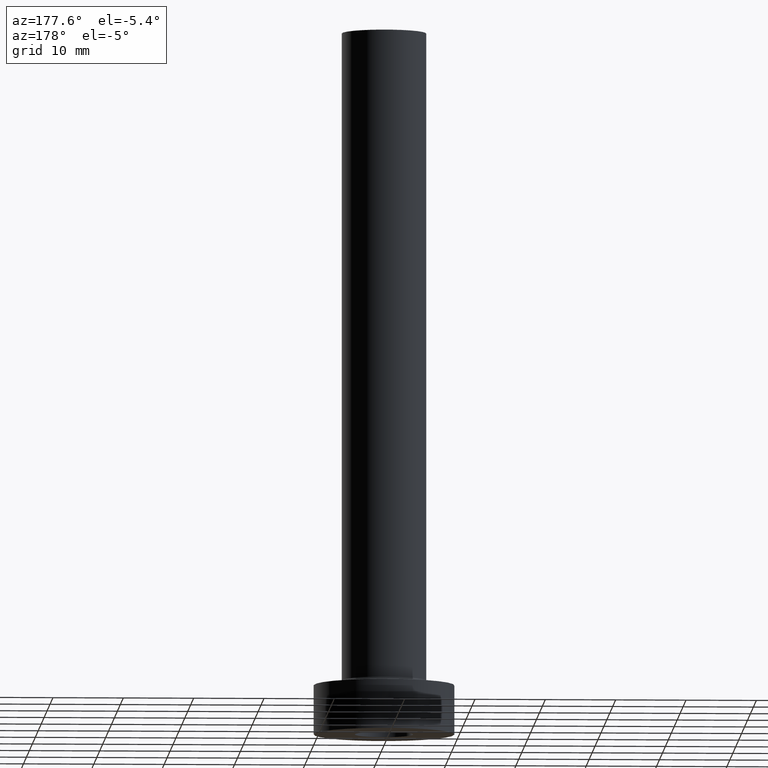
[diagram: clean part render]
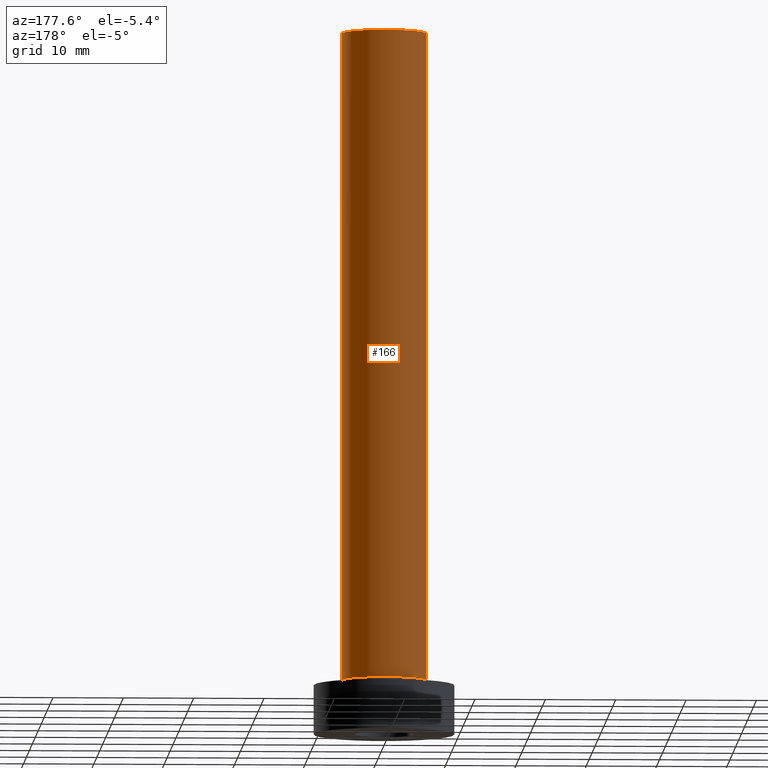
[diagram: same view with one face highlighted and labeled with its STEP entity id]
A machine part, auxiliary view. The second image highlights one B-rep face of the part: STEP entity #166.
In plain terms, the highlighted cylindrical surface (partial cylindrical patch) has radius 6 mm, axis along (-0, -0, -1).
Its self-contained STEP definition (entity closure, byte-faithful):
#14 = DIRECTION ( 'NONE',  ( 0.000000000000000000, 0.000000000000000000, 1.000000000000000000 ) ) ;
#22 = CARTESIAN_POINT ( 'NONE',  ( 0.000000000000000000, 0.000000000000000000, 100.0000000000000000 ) ) ;
#42 = EDGE_CURVE ( 'NONE', #311, #298, #171, .T. ) ;
#58 = VECTOR ( 'NONE', #371, 1000.000000000000000 ) ;
#78 = EDGE_LOOP ( 'NONE', ( #437, #174, #189, #459 ) ) ;
#82 = CARTESIAN_POINT ( 'NONE',  ( 0.000000000000000000, 0.000000000000000000, 100.0000000000000000 ) ) ;
#89 = DIRECTION ( 'NONE',  ( 1.000000000000000000, 0.000000000000000000, 0.000000000000000000 ) ) ;
#90 = AXIS2_PLACEMENT_3D ( 'NONE', #446, #14, #89 ) ;
#110 = CIRCLE ( 'NONE', #90, 6.000000000000000888 ) ;
#115 = DIRECTION ( 'NONE',  ( -1.000000000000000000, 0.000000000000000000, 0.000000000000000000 ) ) ;
#116 = EDGE_CURVE ( 'NONE', #262, #311, #240, .T. ) ;
#142 = FACE_OUTER_BOUND ( 'NONE', #78, .T. ) ;
#166 = ADVANCED_FACE ( 'NONE', ( #142 ), #390, .T. ) ;
#171 = LINE ( 'NONE', #333, #58 ) ;
#174 = ORIENTED_EDGE ( 'NONE', *, *, #213, .T. ) ;
#189 = ORIENTED_EDGE ( 'NONE', *, *, #421, .T. ) ;
#194 = CARTESIAN_POINT ( 'NONE',  ( 6.000000000000000888, 7.347880794884119736E-16, 100.0000000000000000 ) ) ;
#213 = EDGE_CURVE ( 'NONE', #262, #230, #222, .T. ) ;
#222 = LINE ( 'NONE', #426, #335 ) ;
#230 = VERTEX_POINT ( 'NONE', #258 ) ;
#240 = CIRCLE ( 'NONE', #412, 6.000000000000000888 ) ;
#258 = CARTESIAN_POINT ( 'NONE',  ( 6.000000000000000888, 7.347880794884119736E-16, 7.699999999999998401 ) ) ;
#262 = VERTEX_POINT ( 'NONE', #194 ) ;
#269 = DIRECTION ( 'NONE',  ( 0.000000000000000000, 0.000000000000000000, 1.000000000000000000 ) ) ;
#298 = VERTEX_POINT ( 'NONE', #362 ) ;
#311 = VERTEX_POINT ( 'NONE', #443 ) ;
#316 = DIRECTION ( 'NONE',  ( -0.000000000000000000, -0.000000000000000000, -1.000000000000000000 ) ) ;
#333 = CARTESIAN_POINT ( 'NONE',  ( -6.000000000000000888, 0.000000000000000000, 100.0000000000000000 ) ) ;
#335 = VECTOR ( 'NONE', #435, 1000.000000000000000 ) ;
#362 = CARTESIAN_POINT ( 'NONE',  ( -6.000000000000000888, 0.000000000000000000, 7.699999999999998401 ) ) ;
#371 = DIRECTION ( 'NONE',  ( -0.000000000000000000, -0.000000000000000000, -1.000000000000000000 ) ) ;
#374 = AXIS2_PLACEMENT_3D ( 'NONE', #82, #316, #115 ) ;
#390 = CYLINDRICAL_SURFACE ( 'NONE', #374, 6.000000000000000888 ) ;
#412 = AXIS2_PLACEMENT_3D ( 'NONE', #22, #269, #456 ) ;
#421 = EDGE_CURVE ( 'NONE', #230, #298, #110, .T. ) ;
#426 = CARTESIAN_POINT ( 'NONE',  ( 6.000000000000000888, 7.347880794884119736E-16, 100.0000000000000000 ) ) ;
#435 = DIRECTION ( 'NONE',  ( -0.000000000000000000, -0.000000000000000000, -1.000000000000000000 ) ) ;
#437 = ORIENTED_EDGE ( 'NONE', *, *, #116, .F. ) ;
#443 = CARTESIAN_POINT ( 'NONE',  ( -6.000000000000000888, 0.000000000000000000, 100.0000000000000000 ) ) ;
#446 = CARTESIAN_POINT ( 'NONE',  ( 0.000000000000000000, 0.000000000000000000, 7.699999999999998401 ) ) ;
#456 = DIRECTION ( 'NONE',  ( 1.000000000000000000, 0.000000000000000000, 0.000000000000000000 ) ) ;
#459 = ORIENTED_EDGE ( 'NONE', *, *, #42, .F. ) ;